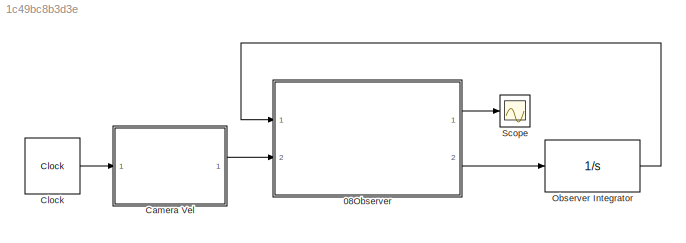
MODEL slx_1c49bc8b3d3e
KIND model
CONFIG AbsTol = auto
CONFIG EnableMultiTasking = off
CONFIG FixedStep = timeStep
CONFIG MaxStep = auto
CONFIG MinStep = auto
CONFIG RelTol = 1e-3
CONFIG SampleTimeConstraint = Unconstrained
CONFIG Solver = ode4
CONFIG SolverName = ode4
CONFIG StartTime = 0.0
CONFIG StopTime = timeStop
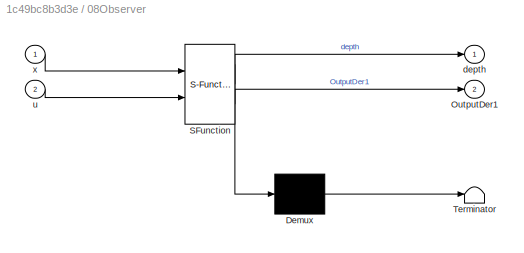
BLOCK [SubSystem] 08Observer
  ErrorFcn = Stateflow.Translate.translate
  PermitHierarchicalResolution = ExplicitOnly
  Ports = [2, 2]
  RequestExecContextInheritance = off
  SFBlockType = MATLAB Function
  TreatAsAtomicUnit = on
BLOCK [Demux] 08Observer/ Demux 
  Outputs = 1
  Ports = [1, 1]
BLOCK [S-Function] 08Observer/ SFunction 
  EnableBusSupport = on
  FunctionName = sf_sfun
  Parameters = focalLen,k81,k82,k83
  PortCounts = [2 3]
  Ports = [2, 3]
  SFcnIsStateOwnerBlock = off
  SFunctionDeploymentMode = off
  Tag = Stateflow S-Function 2
BLOCK [Terminator] 08Observer/ Terminator 
BLOCK [Outport] 08Observer/OutputDer1
  IconDisplay = Port number
  Port = 2
  VectorParamsAs1DForOutWhenUnconnected = off
BLOCK [Outport] 08Observer/depth
  IconDisplay = Port number
BLOCK [Inport] 08Observer/u
  IconDisplay = Port number
  Port = 2
BLOCK [Inport] 08Observer/x
  IconDisplay = Port number
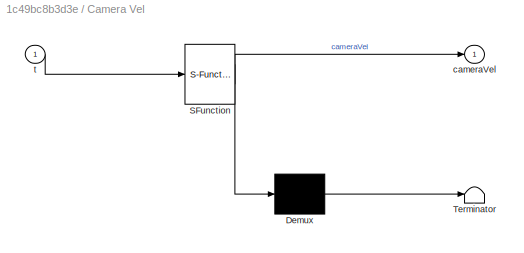
BLOCK [SubSystem] Camera Vel
  ErrorFcn = Stateflow.Translate.translate
  PermitHierarchicalResolution = ExplicitOnly
  Ports = [1, 1]
  RequestExecContextInheritance = off
  SFBlockType = MATLAB Function
  TreatAsAtomicUnit = on
BLOCK [Demux] Camera Vel/ Demux 
  Outputs = 1
  Ports = [1, 1]
BLOCK [S-Function] Camera Vel/ SFunction 
  EnableBusSupport = on
  FunctionName = sf_sfun
  Parameters = modelSelection
  PortCounts = [1 2]
  Ports = [1, 2]
  SFcnIsStateOwnerBlock = off
  SFunctionDeploymentMode = off
  Tag = Stateflow S-Function 1
BLOCK [Terminator] Camera Vel/ Terminator 
BLOCK [Outport] Camera Vel/cameraVel
  IconDisplay = Port number
  VectorParamsAs1DForOutWhenUnconnected = off
BLOCK [Inport] Camera Vel/t
  IconDisplay = Port number
BLOCK [Clock] Clock
  Decimation = 5
  DisplayTime = on
BLOCK [Integrator] Observer Integrator
  InitialCondition = [3, 1.5, 0.25, 1200, 1000, 25]
  Ports = [1, 1]
BLOCK [Scope] Scope
  Floating = off
  NumInputPorts = 1
  Ports = [1]
  ScopeSpecificationString = Simulink.scopes.TimeScopeBlockCfg('CurrentConfiguration', extmgr.ConfigurationSet(extmgr.Configuration('Core','General UI',true),extmgr.Configuration('Core','Source UI',true),extmgr.Configuration('Sources','WiredSimulink',true),extmgr.Configuration('Visuals','Time Domain',true,'SerializedDisplays',{struct('MinYLimReal','-9507.60863','MaxYLimReal','61423.12433','YLabelReal','','MinYLimMag','  0.000...<+1460ch>
LINE 08Observer:1 -> Scope:1
LINE 08Observer:2 -> Observer Integrator:1
LINE Camera Vel:1 -> 08Observer:2
LINE Clock:1 -> Camera Vel:1
LINE Observer Integrator:1 -> 08Observer:1
CHART Camera Vel states=1 transitions=1
  STATE_LABEL 'eML_blk_kernel()'
  STATE_LABEL 'SCRIPT:\nfunction cameraVel = Model(t, modelSelection)\n%% 设定如下透视系统模型，模型为 Xdot = AX + B\ncameraVel = zeros(1,6);\n\nif modelSelection == 1\n% 测试1.该模型用于验证观测器的收敛性,是否收敛于任意大的初值\n    cameraVel(1) = 0.1;\n    cameraVel(2) = 0.2;\n    cameraVel(3) = -0.8;\n    cameraVel(4) = sin(pi*t);\n    cameraVel(5) = pi/15;\n    cameraVel(6) = pi/8; \nend\nend'
CHART 08Observer states=1 transitions=1
  STATE_LABEL 'eML_blk_kernel()'
  STATE_LABEL 'SCRIPT:\nfunction [depth,OutputDer1] = Observer(x, u, focalLen, k81, k82, k83)\n%% 模型初始化\n% 初始化输出\nOutputDer1 = zeros(1,6);\ndepth = zeros(1,2);\n\n% 系统动力学\nOutputDer1(1:3) = [-focalLen*x(3), 0, x(1)*x(3), x(1)*x(2)/focalLen, -(focalLen+x(1)^2/focalLen), x(2);\n          0, -focalLen*x(3), x(2)*x(3), (focalLen+x(2)^2/focalLen), -x(1)*x(2)/focalLen, -x(1);\n          0, 0, x(3)^2, x(2)*x(3)/focalLen, -x(1)*x...<+809ch>'
